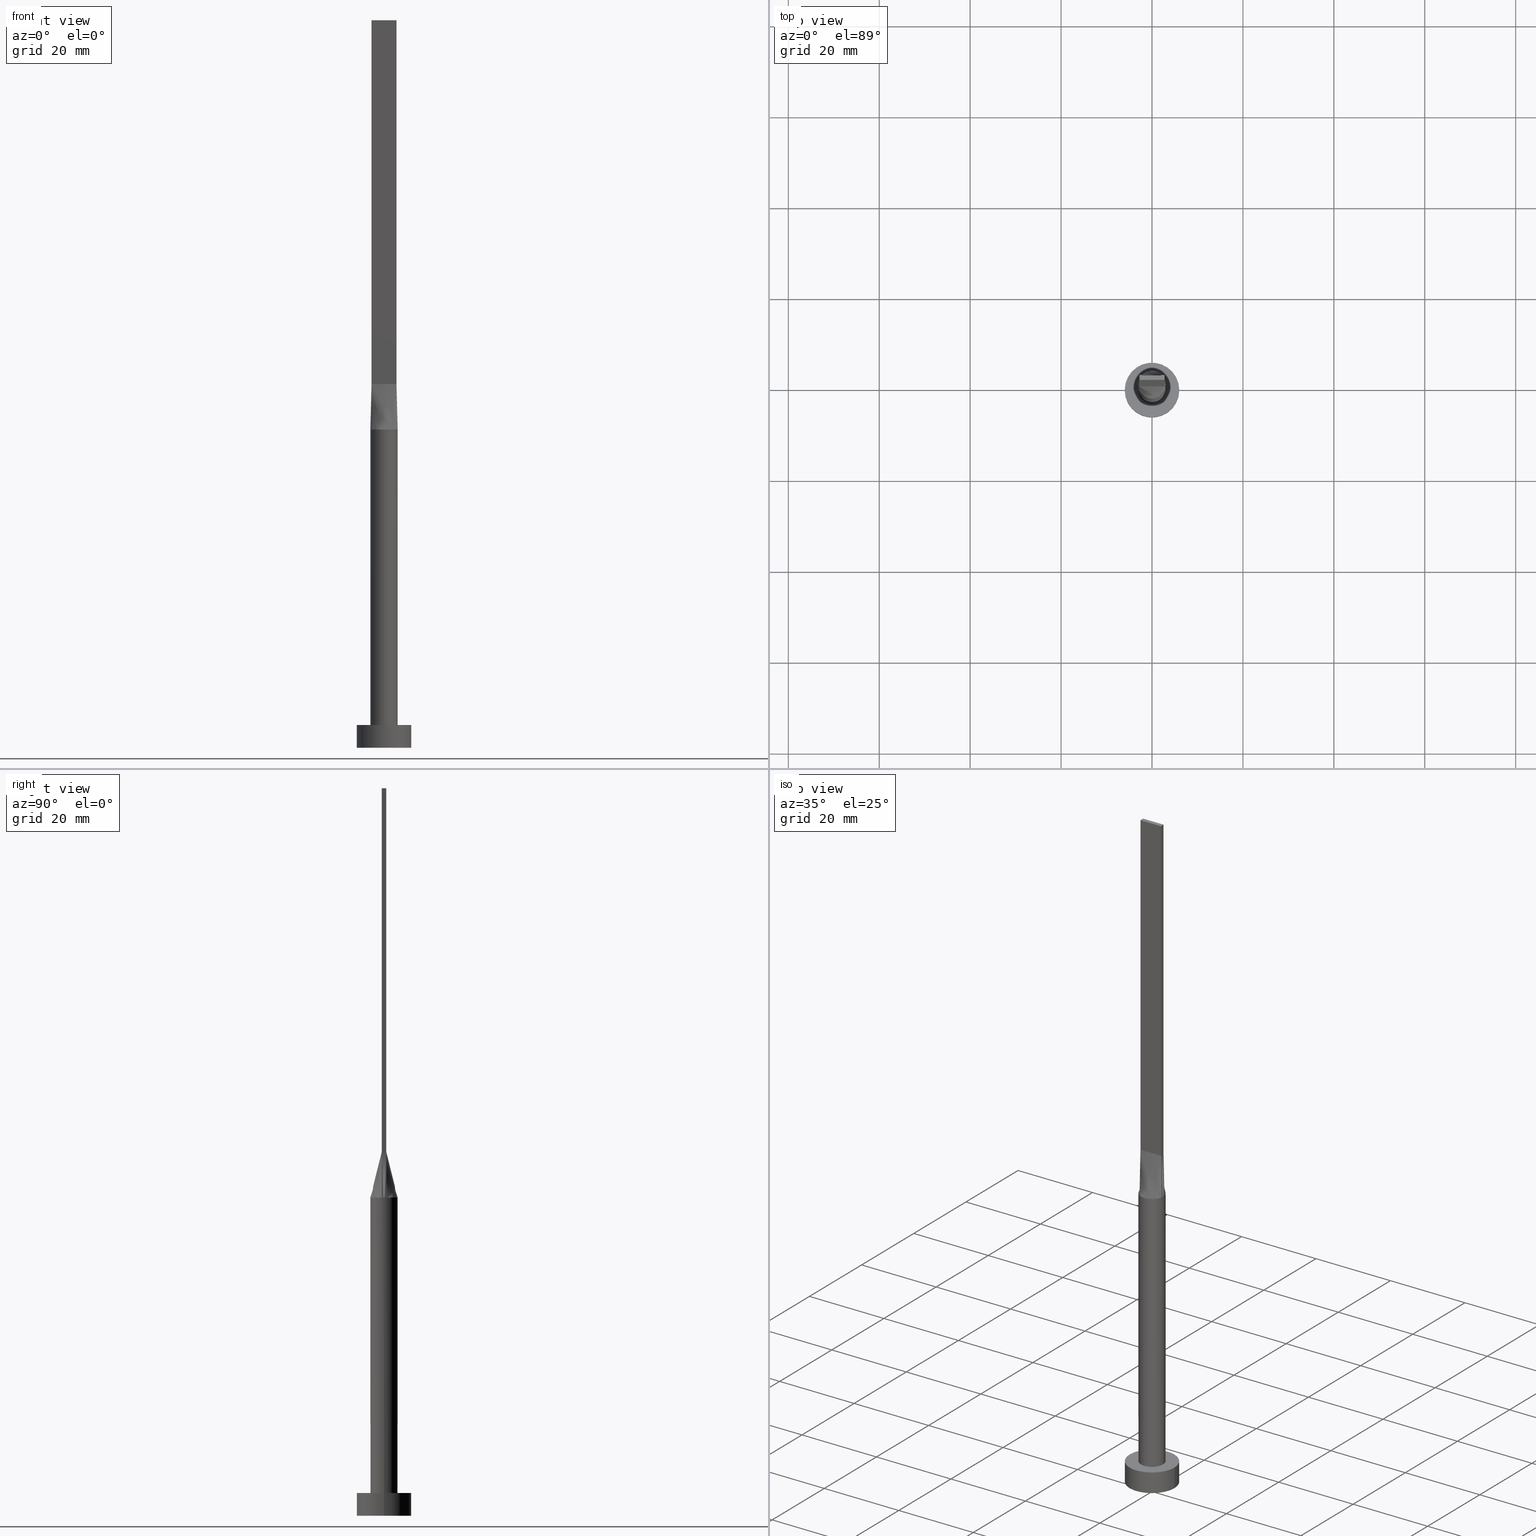
[diagram: canonical four-view strip — front | top / right | iso, engineering-drawing reading convention]
A machine part, canonical four-view strip (front | top / right | iso — engineering-drawing reading convention). The complete STEP part file that produces these views, byte-faithful:
ISO-10303-21;
HEADER;
FILE_DESCRIPTION (( 'STEP AP203' ),
    '1' );
FILE_NAME ('b44e.STEP',
    '2023-02-13T11:43:28',
    ( '' ),
    ( '' ),
    'SwSTEP 2.0',
    'SolidWorks 2019',
    '' );
FILE_SCHEMA (( 'CONFIG_CONTROL_DESIGN' ));
ENDSEC;

DATA;
#1 = DIRECTION ( 'NONE',  ( -1.000000000000000000, 5.913830031739115543E-17, 0.000000000000000000 ) ) ;
#2 = EDGE_CURVE ( 'NONE', #473, #465, #387, .T. ) ;
#3 = ORIENTED_EDGE ( 'NONE', *, *, #96, .T. ) ;
#4 = VERTEX_POINT ( 'NONE', #468 ) ;
#5 = AXIS2_PLACEMENT_3D ( 'NONE', #438, #88, #351 ) ;
#6 = CIRCLE ( 'NONE', #252, 3.000000000000000444 ) ;
#7 = CARTESIAN_POINT ( 'NONE',  ( 2.983609730299723317, 0.3606563145999492903, 70.00000000000000000 ) ) ;
#8 = ORIENTED_EDGE ( 'NONE', *, *, #384, .F. ) ;
#9 = ORIENTED_EDGE ( 'NONE', *, *, #550, .F. ) ;
#10 = FACE_OUTER_BOUND ( 'NONE', #406, .T. ) ;
#11 = DIRECTION ( 'NONE',  ( 1.000000000000000000, 0.000000000000000000, 0.000000000000000000 ) ) ;
#12 = MANIFOLD_SOLID_BREP ( 'P�idat vysunut�m5', #442 ) ;
#13 = CARTESIAN_POINT ( 'NONE',  ( -2.999609730299722887, -0.1803281572999742843, 70.00000000000000000 ) ) ;
#14 = VECTOR ( 'NONE', #429, 1000.000000000000000 ) ;
#15 = CC_DESIGN_APPROVAL ( #155, ( #521 ) ) ;
#16 = EDGE_LOOP ( 'NONE', ( #157, #390, #172, #3 ) ) ;
#17 = CARTESIAN_POINT ( 'NONE',  ( -0.8331239790496237640, 2.909606296598777231, 70.00000000000001421 ) ) ;
#18 = DIRECTION ( 'NONE',  ( 1.000000000000000000, -5.913830031739115543E-17, 0.000000000000000000 ) ) ;
#19 = VERTEX_POINT ( 'NONE', #124 ) ;
#20 = CARTESIAN_POINT ( 'NONE',  ( 0.000000000000000000, 0.000000000000000000, 70.00000000000000000 ) ) ;
#21 = ORIENTED_EDGE ( 'NONE', *, *, #405, .T. ) ;
#22 = EDGE_CURVE ( 'NONE', #32, #74, #401, .T. ) ;
#23 = CARTESIAN_POINT ( 'NONE',  ( 2.907609730299723250, -0.7786563145999499946, 70.00000000000001421 ) ) ;
#24 = VECTOR ( 'NONE', #223, 1000.000000000000000 ) ;
#25 = CARTESIAN_POINT ( 'NONE',  ( -6.000000000000000888, 0.000000000000000000, 5.000000000000000000 ) ) ;
#26 =( NAMED_UNIT ( * ) PLANE_ANGLE_UNIT ( ) SI_UNIT ( $, .RADIAN. ) );
#27 = CARTESIAN_POINT ( 'NONE',  ( 2.829409566978765778, 1.041313647073049298, 70.00000000000000000 ) ) ;
#28 = CARTESIAN_POINT ( 'NONE',  ( -6.000000000000000888, 0.000000000000000000, 5.000000000000000000 ) ) ;
#29 = DIRECTION ( 'NONE',  ( 1.000000000000000000, -5.913830031739115543E-17, 0.000000000000000000 ) ) ;
#30 = ADVANCED_FACE ( 'NONE', ( #563 ), #466, .T. ) ;
#31 = CARTESIAN_POINT ( 'NONE',  ( 0.000000000000000000, 0.000000000000000000, 0.000000000000000000 ) ) ;
#32 = VERTEX_POINT ( 'NONE', #484 ) ;
#33 = DIRECTION ( 'NONE',  ( 1.000000000000000000, 0.000000000000000000, 0.000000000000000000 ) ) ;
#34 = DIRECTION ( 'NONE',  ( -0.02015674154923151329, -0.003664862099860239936, -0.9997901152521495582 ) ) ;
#35 = CARTESIAN_POINT ( 'NONE',  ( -2.750000000000000000, 0.5000000000000002220, 80.00000000000000000 ) ) ;
#36 = APPROVAL_STATUS ( 'not_yet_approved' ) ;
#37 = EDGE_CURVE ( 'NONE', #473, #4, #319, .T. ) ;
#38 = PERSON_AND_ORGANIZATION_ROLE ( 'creator' ) ;
#39 = APPROVAL_STATUS ( 'not_yet_approved' ) ;
#40 = CARTESIAN_POINT ( 'NONE',  ( -2.951609730299722401, 0.5366563145999488915, 70.00000000000000000 ) ) ;
#41 = CARTESIAN_POINT ( 'NONE',  ( 2.850804865149861644, 0.5183281572999747233, 75.00000000000001421 ) ) ;
#42 = VECTOR ( 'NONE', #288, 1000.000000000000114 ) ;
#43 = DATE_AND_TIME ( #573, #60 ) ;
#44 = ORIENTED_EDGE ( 'NONE', *, *, #2, .T. ) ;
#45 = CARTESIAN_POINT ( 'NONE',  ( 2.951896064709005785, -0.5367080392066734262, 70.00000000000000000 ) ) ;
#46 = CARTESIAN_POINT ( 'NONE',  ( -1.604166666666666963, 0.5000000000000002220, 79.99999999999998579 ) ) ;
#47 = EDGE_CURVE ( 'NONE', #421, #225, #304, .T. ) ;
#48 = ORIENTED_EDGE ( 'NONE', *, *, #276, .T. ) ;
#49 = CARTESIAN_POINT ( 'NONE',  ( 2.750000000000000000, -0.4999999999999997780, 160.0000000000000000 ) ) ;
#50 = CARTESIAN_POINT ( 'NONE',  ( 0.000000000000000000, 0.000000000000000000, 5.000000000000000000 ) ) ;
#51 = VERTEX_POINT ( 'NONE', #28 ) ;
#52 = PLANE ( 'NONE',  #145 ) ;
#53 = AXIS2_PLACEMENT_3D ( 'NONE', #122, #540, #119 ) ;
#54 = EDGE_CURVE ( 'NONE', #456, #191, #199, .T. ) ;
#55 = DIRECTION ( 'NONE',  ( 1.000000000000000000, 0.000000000000000000, -0.000000000000000000 ) ) ;
#56 = CARTESIAN_POINT ( 'NONE',  ( -2.750000000000000000, 0.5000000000000002220, 160.0000000000000000 ) ) ;
#57 = UNCERTAINTY_MEASURE_WITH_UNIT (LENGTH_MEASURE( 1.000000000000000082E-05 ), #247, 'distance_accuracy_value', 'NONE');
#58 = VECTOR ( 'NONE', #498, 1000.000000000000000 ) ;
#59 = CARTESIAN_POINT ( 'NONE',  ( 2.750000000000000000, 0.5000000000000002220, 160.0000000000000000 ) ) ;
#60 = LOCAL_TIME ( 12, 43, 28.00000000000000000, #399 ) ;
#61 = VERTEX_POINT ( 'NONE', #312 ) ;
#62 = CARTESIAN_POINT ( 'NONE',  ( -1.145833333333333703, 0.5000000000000002220, 79.99999999999998579 ) ) ;
#63 = CC_DESIGN_DATE_AND_TIME_ASSIGNMENT ( #445, #308, ( #80 ) ) ;
#64 = EDGE_LOOP ( 'NONE', ( #181, #578, #9, #300, #441, #21 ) ) ;
#65 = CARTESIAN_POINT ( 'NONE',  ( 2.907609730299723250, 0.7786563145999496616, 70.00000000000001421 ) ) ;
#66 = CARTESIAN_POINT ( 'NONE',  ( 0.000000000000000000, 0.000000000000000000, 0.000000000000000000 ) ) ;
#67 = CARTESIAN_POINT ( 'NONE',  ( 2.291666666666666519, 0.5000000000000002220, 79.99999999999998579 ) ) ;
#68 = ORIENTED_EDGE ( 'NONE', *, *, #231, .F. ) ;
#69 = DIRECTION ( 'NONE',  ( -0.000000000000000000, -0.000000000000000000, -1.000000000000000000 ) ) ;
#70 = DIRECTION ( 'NONE',  ( 1.000000000000000000, 0.000000000000000000, 0.000000000000000000 ) ) ;
#71 = CARTESIAN_POINT ( 'NONE',  ( -0.4172881767044976375, 2.999999999999999556, 69.99999999999998579 ) ) ;
#72 = LINE ( 'NONE', #125, #371 ) ;
#73 = AXIS2_PLACEMENT_3D ( 'NONE', #198, #528, #159 ) ;
#74 = VERTEX_POINT ( 'NONE', #579 ) ;
#75 = DIRECTION ( 'NONE',  ( -1.000000000000000000, 0.000000000000000000, 0.000000000000000000 ) ) ;
#76 = PERSON ( 'NEUR�EN�', 'NEUR�EN�', 'NEUR�EN�', ('NEUR�EN�'), ('NEUR�EN�'), ('NEUR�EN�') ) ;
#77 = FACE_OUTER_BOUND ( 'NONE', #418, .T. ) ;
#78 = COORDINATED_UNIVERSAL_TIME_OFFSET ( 1, 0, .AHEAD. ) ;
#79 = VECTOR ( 'NONE', #432, 1000.000000000000000 ) ;
#80 = SECURITY_CLASSIFICATION ( '', '', #269 ) ;
#81 = LINE ( 'NONE', #524, #474 ) ;
#82 = CARTESIAN_POINT ( 'NONE',  ( 2.567367750129864401, -1.580669302822276023, 70.00000000000001421 ) ) ;
#83 = DATE_TIME_ROLE ( 'creation_date' ) ;
#84 = ORIENTED_EDGE ( 'NONE', *, *, #180, .F. ) ;
#85 = ADVANCED_FACE ( 'NONE', ( #506 ), #52, .F. ) ;
#86 = CARTESIAN_POINT ( 'NONE',  ( -0.4583333333333340365, -0.4999999999999995559, 79.99999999999998579 ) ) ;
#87 = PRODUCT_DEFINITION_SHAPE ( 'NONE', 'NONE',  #521 ) ;
#88 = DIRECTION ( 'NONE',  ( 0.000000000000000000, 0.000000000000000000, 1.000000000000000000 ) ) ;
#89 = CARTESIAN_POINT ( 'NONE',  ( 0.2291666666666659635, -0.4999999999999995559, 79.99999999999998579 ) ) ;
#90 = CARTESIAN_POINT ( 'NONE',  ( 0.4583333333333325932, -0.4999999999999995559, 79.99999999999998579 ) ) ;
#91 = CALENDAR_DATE ( 2023, 13, 2 ) ;
#92 = ORIENTED_EDGE ( 'NONE', *, *, #111, .T. ) ;
#93 = CARTESIAN_POINT ( 'NONE',  ( -2.750000000000000000, -0.4999999999999994449, 160.0000000000000000 ) ) ;
#94 = DIRECTION ( 'NONE',  ( 0.000000000000000000, 0.000000000000000000, 1.000000000000000000 ) ) ;
#95 = ORIENTED_EDGE ( 'NONE', *, *, #131, .T. ) ;
#96 = EDGE_CURVE ( 'NONE', #74, #32, #551, .T. ) ;
#97 = AXIS2_PLACEMENT_3D ( 'NONE', #213, #455, #450 ) ;
#98 = ORIENTED_EDGE ( 'NONE', *, *, #169, .T. ) ;
#99 = FACE_OUTER_BOUND ( 'NONE', #16, .T. ) ;
#100 = PERSON_AND_ORGANIZATION_ROLE ( 'design_supplier' ) ;
#101 = CARTESIAN_POINT ( 'NONE',  ( -1.833333333333333481, 0.5000000000000002220, 79.99999999999998579 ) ) ;
#102 = EDGE_LOOP ( 'NONE', ( #451, #98, #48, #408, #410, #415 ) ) ;
#103 = DIRECTION ( 'NONE',  ( 1.000000000000000000, 0.000000000000000000, -0.000000000000000000 ) ) ;
#104 = CARTESIAN_POINT ( 'NONE',  ( 2.750000000000000000, -0.4999999999999997780, 160.0000000000000000 ) ) ;
#105 = EDGE_CURVE ( 'NONE', #61, #456, #271, .T. ) ;
#106 = CARTESIAN_POINT ( 'NONE',  ( 2.951609730299722401, -0.5366563145999498907, 70.00000000000000000 ) ) ;
#107 = AXIS2_PLACEMENT_3D ( 'NONE', #244, #69, #75 ) ;
#108 = APPROVAL_PERSON_ORGANIZATION ( #398, #435, #572 ) ;
#109 = CARTESIAN_POINT ( 'NONE',  ( -2.983609730299722429, 0.3606563145999497344, 70.00000000000000000 ) ) ;
#110 = FACE_OUTER_BOUND ( 'NONE', #321, .T. ) ;
#111 = EDGE_CURVE ( 'NONE', #51, #142, #188, .T. ) ;
#112 = VECTOR ( 'NONE', #34, 1000.000000000000114 ) ;
#113 = CARTESIAN_POINT ( 'NONE',  ( 0.4172881767044975820, 3.000000000000000000, 70.00000000000000000 ) ) ;
#114 = ORIENTED_EDGE ( 'NONE', *, *, #189, .F. ) ;
#115 = CARTESIAN_POINT ( 'NONE',  ( 2.907609730299723250, 0.7786563145999496616, 70.00000000000001421 ) ) ;
#116 = CARTESIAN_POINT ( 'NONE',  ( -2.567367750129864401, 1.580669302822275357, 70.00000000000001421 ) ) ;
#117 = CARTESIAN_POINT ( 'NONE',  ( 2.850804865149861200, -0.5183281572999745013, 75.00000000000001421 ) ) ;
#118 = CARTESIAN_POINT ( 'NONE',  ( 0.2291666666666662966, 0.5000000000000002220, 80.00000000000000000 ) ) ;
#119 = DIRECTION ( 'NONE',  ( 1.000000000000000000, 0.000000000000000000, 0.000000000000000000 ) ) ;
#120 = EDGE_CURVE ( 'NONE', #421, #574, #508, .T. ) ;
#121 = CARTESIAN_POINT ( 'NONE',  ( -2.520833333333333037, -0.4999999999999994449, 79.99999999999998579 ) ) ;
#122 = CARTESIAN_POINT ( 'NONE',  ( 0.000000000000000000, 0.000000000000000000, 70.00000000000000000 ) ) ;
#123 = ORIENTED_EDGE ( 'NONE', *, *, #96, .F. ) ;
#124 = CARTESIAN_POINT ( 'NONE',  ( -3.000000000000000444, 0.000000000000000000, 5.000000000000000000 ) ) ;
#125 = CARTESIAN_POINT ( 'NONE',  ( 2.750000000000000000, 0.5000000000000002220, 160.0000000000000000 ) ) ;
#126 = ORIENTED_EDGE ( 'NONE', *, *, #256, .T. ) ;
#127 = CARTESIAN_POINT ( 'NONE',  ( -2.567367750129864845, -1.580669302822274691, 70.00000000000000000 ) ) ;
#128 = EDGE_CURVE ( 'NONE', #174, #555, #316, .T. ) ;
#129 = CARTESIAN_POINT ( 'NONE',  ( -1.566158656300002727, -2.589797565249318811, 70.00000000000000000 ) ) ;
#130 = CIRCLE ( 'NONE', #243, 3.000000000000000444 ) ;
#131 = EDGE_CURVE ( 'NONE', #555, #225, #396, .T. ) ;
#132 = EDGE_LOOP ( 'NONE', ( #496, #44, #499, #514 ) ) ;
#133 = LINE ( 'NONE', #211, #112 ) ;
#134 = AXIS2_PLACEMENT_3D ( 'NONE', #170, #353, #1 ) ;
#135 = APPROVAL_PERSON_ORGANIZATION ( #201, #155, #542 ) ;
#136 = ORIENTED_EDGE ( 'NONE', *, *, #54, .F. ) ;
#137 = CARTESIAN_POINT ( 'NONE',  ( -2.750000000000000000, -0.1666666666666678787, 79.99999999999998579 ) ) ;
#138 = DIRECTION ( 'NONE',  ( -0.000000000000000000, -0.000000000000000000, -1.000000000000000000 ) ) ;
#139 = FACE_OUTER_BOUND ( 'NONE', #513, .T. ) ;
#140 = CALENDAR_DATE ( 2023, 13, 2 ) ;
#141 = DIRECTION ( 'NONE',  ( 0.000000000000000000, 0.000000000000000000, 1.000000000000000000 ) ) ;
#142 = VERTEX_POINT ( 'NONE', #539 ) ;
#143 = CYLINDRICAL_SURFACE ( 'NONE', #426, 3.000000000000000444 ) ;
#144 = CARTESIAN_POINT ( 'NONE',  ( -1.566158656300002061, 2.589797565249319700, 69.99999999999998579 ) ) ;
#145 = AXIS2_PLACEMENT_3D ( 'NONE', #501, #224, #403 ) ;
#146 = CARTESIAN_POINT ( 'NONE',  ( 2.750000000000000000, 0.3333333333333342585, 79.99999999999998579 ) ) ;
#147 = CARTESIAN_POINT ( 'NONE',  ( 0.9166666666666664076, 0.5000000000000002220, 79.99999999999998579 ) ) ;
#148 = PLANE ( 'NONE',  #331 ) ;
#149 = CARTESIAN_POINT ( 'NONE',  ( 0.4583333333333330373, 0.5000000000000002220, 79.99999999999998579 ) ) ;
#150 = CARTESIAN_POINT ( 'NONE',  ( 1.566158656300002061, 2.589797565249318811, 70.00000000000000000 ) ) ;
#151 = MECHANICAL_CONTEXT ( 'NONE', #364, 'mechanical' ) ;
#152 = VECTOR ( 'NONE', #544, 1000.000000000000000 ) ;
#153 = CARTESIAN_POINT ( 'NONE',  ( 2.951871110830718514, 0.5367036202482695639, 70.00000000000000000 ) ) ;
#154 = CARTESIAN_POINT ( 'NONE',  ( 1.833333333333333037, 0.5000000000000002220, 79.99999999999998579 ) ) ;
#155 = APPROVAL ( #36, 'NEUR�EN�' ) ;
#156 = APPLICATION_PROTOCOL_DEFINITION ( 'international standard', 'config_control_design', 1994, #274 ) ;
#157 = ORIENTED_EDGE ( 'NONE', *, *, #328, .F. ) ;
#158 = CARTESIAN_POINT ( 'NONE',  ( -2.750000000000000000, -0.4999999999999994449, 80.00000000000000000 ) ) ;
#159 = DIRECTION ( 'NONE',  ( 0.000000000000000000, 0.000000000000000000, 1.000000000000000000 ) ) ;
#160 = ORIENTED_EDGE ( 'NONE', *, *, #163, .F. ) ;
#161 = CARTESIAN_POINT ( 'NONE',  ( -2.951609730299722845, -0.5366563145999487805, 70.00000000000000000 ) ) ;
#162 = VECTOR ( 'NONE', #18, 1000.000000000000000 ) ;
#163 = EDGE_CURVE ( 'NONE', #191, #239, #133, .T. ) ;
#164 = CARTESIAN_POINT ( 'NONE',  ( -2.951885853416577277, -0.5367063210726346068, 70.00000000000000000 ) ) ;
#165 = ORIENTED_EDGE ( 'NONE', *, *, #22, .T. ) ;
#166 = CARTESIAN_POINT ( 'NONE',  ( -1.882426928433514224, -2.362790634184934291, 69.99999999999998579 ) ) ;
#167 = CYLINDRICAL_SURFACE ( 'NONE', #463, 6.000000000000000888 ) ;
#168 = LOCAL_TIME ( 12, 43, 28.00000000000000000, #176 ) ;
#169 = EDGE_CURVE ( 'NONE', #4, #536, #494, .T. ) ;
#170 = CARTESIAN_POINT ( 'NONE',  ( -2.750000000000000000, -0.4999999999999994449, 160.0000000000000000 ) ) ;
#171 = CARTESIAN_POINT ( 'NONE',  ( 1.566158656300001395, -2.589797565249319256, 69.99999999999998579 ) ) ;
#172 = ORIENTED_EDGE ( 'NONE', *, *, #241, .T. ) ;
#173 = CARTESIAN_POINT ( 'NONE',  ( -2.983609730299723317, -0.3606563145999489572, 70.00000000000000000 ) ) ;
#174 = VERTEX_POINT ( 'NONE', #446 ) ;
#175 = CARTESIAN_POINT ( 'NONE',  ( 2.750000000000000000, 0.5000000000000002220, 160.0000000000000000 ) ) ;
#176 = COORDINATED_UNIVERSAL_TIME_OFFSET ( 1, 0, .AHEAD. ) ;
#177 = VECTOR ( 'NONE', #480, 1000.000000000000000 ) ;
#178 = ORIENTED_EDGE ( 'NONE', *, *, #365, .T. ) ;
#179 = CARTESIAN_POINT ( 'NONE',  ( -2.750000000000000000, 0.1666666666666652696, 79.99999999999998579 ) ) ;
#180 = EDGE_CURVE ( 'NONE', #465, #555, #81, .T. ) ;
#181 = ORIENTED_EDGE ( 'NONE', *, *, #169, .F. ) ;
#182 = DIRECTION ( 'NONE',  ( -1.000000000000000000, 0.000000000000000000, 0.000000000000000000 ) ) ;
#183 = DIRECTION ( 'NONE',  ( 1.000000000000000000, 0.000000000000000000, 0.000000000000000000 ) ) ;
#184 = CARTESIAN_POINT ( 'NONE',  ( 2.750000000000000000, -0.3333333333333324267, 79.99999999999998579 ) ) ;
#185 = CARTESIAN_POINT ( 'NONE',  ( -0.4583333333333337034, 0.5000000000000002220, 79.99999999999998579 ) ) ;
#186 = CARTESIAN_POINT ( 'NONE',  ( -2.951881273711813858, 0.5367053345652121887, 70.00000000000000000 ) ) ;
#187 = CARTESIAN_POINT ( 'NONE',  ( 1.882426928433512892, 2.362790634184934291, 69.99999999999998579 ) ) ;
#188 = CIRCLE ( 'NONE', #229, 6.000000000000000888 ) ;
#189 = EDGE_CURVE ( 'NONE', #412, #555, #72, .T. ) ;
#190 = CARTESIAN_POINT ( 'NONE',  ( -2.750000000000000000, -0.3333333333333339255, 79.99999999999998579 ) ) ;
#191 = VERTEX_POINT ( 'NONE', #349 ) ;
#192 = CARTESIAN_POINT ( 'NONE',  ( 6.000000000000000888, 7.347880794884120722E-16, 5.000000000000000000 ) ) ;
#193 =( NAMED_UNIT ( * ) SI_UNIT ( $, .STERADIAN. ) SOLID_ANGLE_UNIT ( ) );
#194 = VERTEX_POINT ( 'NONE', #200 ) ;
#195 = ORIENTED_EDGE ( 'NONE', *, *, #266, .T. ) ;
#196 = LOCAL_TIME ( 12, 43, 28.00000000000000000, #78 ) ;
#197 = CARTESIAN_POINT ( 'NONE',  ( -0.8331239790496237640, 2.909606296598777231, 70.00000000000001421 ) ) ;
#198 = CARTESIAN_POINT ( 'NONE',  ( 2.750000000000000000, -0.4999999999999997780, 160.0000000000000000 ) ) ;
#199 = LINE ( 'NONE', #354, #329 ) ;
#200 = CARTESIAN_POINT ( 'NONE',  ( 2.750000000000000000, -0.4999999999999997780, 160.0000000000000000 ) ) ;
#201 = PERSON_AND_ORGANIZATION ( #76, #391 ) ;
#202 = ORIENTED_EDGE ( 'NONE', *, *, #2, .F. ) ;
#203 = EDGE_CURVE ( 'NONE', #412, #61, #433, .T. ) ;
#204 = AXIS2_PLACEMENT_3D ( 'NONE', #307, #94, #363 ) ;
#205 = CC_DESIGN_SECURITY_CLASSIFICATION ( #80, ( #310 ) ) ;
#206 = CARTESIAN_POINT ( 'NONE',  ( 3.000000000000000444, 3.673940397442060361E-16, 70.00000000000000000 ) ) ;
#207 = FACE_OUTER_BOUND ( 'NONE', #264, .T. ) ;
#208 = CARTESIAN_POINT ( 'NONE',  ( -1.145833333333333703, -0.4999999999999995559, 79.99999999999998579 ) ) ;
#209 = PERSON_AND_ORGANIZATION ( #76, #391 ) ;
#210 = PRODUCT_RELATED_PRODUCT_CATEGORY ( 'detail', '', ( #254 ) ) ;
#211 = CARTESIAN_POINT ( 'NONE',  ( -2.850804865149861644, -0.5183281572999741682, 75.00000000000001421 ) ) ;
#212 = DATE_AND_TIME ( #530, #500 ) ;
#213 = CARTESIAN_POINT ( 'NONE',  ( 0.000000000000000000, 0.000000000000000000, 5.000000000000000000 ) ) ;
#214 = ORIENTED_EDGE ( 'NONE', *, *, #339, .T. ) ;
#215 = B_SPLINE_CURVE_WITH_KNOTS ( 'NONE', 3,
 ( #153, #65, #27, #374, #376, #557, #150, #327, #113, #286, #197, #467, #332, #383, #116, #290, #337, #535 ),
 .UNSPECIFIED., .F., .F.,
 ( 4, 2, 2, 2, 2, 2, 2, 2, 4 ),
 ( 0.000000000000000000, 0.1250000000000000000, 0.2500000000000000000, 0.3750000000000000000, 0.5000000000000000000, 0.6250000000000000000, 0.7500000000000000000, 0.8750000000000000000, 1.000000000000000000 ),
 .UNSPECIFIED. ) ;
#216 = DIRECTION ( 'NONE',  ( -0.000000000000000000, -0.000000000000000000, -1.000000000000000000 ) ) ;
#217 = AXIS2_PLACEMENT_3D ( 'NONE', #272, #141, #358 ) ;
#218 = APPROVAL_DATE_TIME ( #43, #420 ) ;
#219 = EDGE_LOOP ( 'NONE', ( #214, #461, #360, #543 ) ) ;
#220 = ORIENTED_EDGE ( 'NONE', *, *, #227, .T. ) ;
#221 = DIRECTION ( 'NONE',  ( -1.000000000000000000, -0.000000000000000000, -0.000000000000000000 ) ) ;
#222 = EDGE_LOOP ( 'NONE', ( #68, #366, #165, #381 ) ) ;
#223 = DIRECTION ( 'NONE',  ( 0.000000000000000000, 1.000000000000000000, 0.000000000000000000 ) ) ;
#224 = DIRECTION ( 'NONE',  ( 1.000000000000000000, 0.000000000000000000, -0.000000000000000000 ) ) ;
#225 = VERTEX_POINT ( 'NONE', #291 ) ;
#226 = CARTESIAN_POINT ( 'NONE',  ( 0.000000000000000000, 0.000000000000000000, 70.00000000000000000 ) ) ;
#227 = EDGE_CURVE ( 'NONE', #225, #191, #246, .T. ) ;
#228 = CARTESIAN_POINT ( 'NONE',  ( 2.750000000000000000, -0.1666666666666653529, 79.99999999999998579 ) ) ;
#229 = AXIS2_PLACEMENT_3D ( 'NONE', #50, #443, #407 ) ;
#230 = LOCAL_TIME ( 12, 43, 28.00000000000000000, #359 ) ;
#231 = EDGE_CURVE ( 'NONE', #142, #51, #434, .T. ) ;
#232 = CARTESIAN_POINT ( 'NONE',  ( 2.382399439808187580, 1.857547746650221709, 70.00000000000000000 ) ) ;
#233 = AXIS2_PLACEMENT_3D ( 'NONE', #318, #559, #55 ) ;
#234 = CARTESIAN_POINT ( 'NONE',  ( 3.000000000000000444, 3.673940397442060361E-16, 5.000000000000000000 ) ) ;
#235 = CARTESIAN_POINT ( 'NONE',  ( -2.382399439808186692, 1.857547746650221265, 70.00000000000001421 ) ) ;
#236 = DIRECTION ( 'NONE',  ( 1.000000000000000000, 0.000000000000000000, 0.000000000000000000 ) ) ;
#237 = PLANE ( 'NONE',  #233 ) ;
#238 = ORIENTED_EDGE ( 'NONE', *, *, #309, .T. ) ;
#239 = VERTEX_POINT ( 'NONE', #164 ) ;
#240 = B_SPLINE_SURFACE_WITH_KNOTS ( 'NONE', 3, 1, ( 
 ( #106, #502 ),
 ( #277, #184 ),
 ( #368, #228 ),
 ( #313, #414 ),
 ( #7, #146 ),
 ( #322, #280 ) ),
 .UNSPECIFIED., .F., .F., .F.,
 ( 4, 2, 4 ),
 ( 2, 2 ),
 ( 0.000000000000000000, 0.5000000000000000000, 1.000000000000000000 ),
 ( 0.000000000000000000, 1.000000000000000000 ),
 .UNSPECIFIED. ) ;
#241 = EDGE_CURVE ( 'NONE', #51, #74, #388, .T. ) ;
#242 = CARTESIAN_POINT ( 'NONE',  ( 2.750000000000000000, 0.5000000000000002220, 80.00000000000000000 ) ) ;
#243 = AXIS2_PLACEMENT_3D ( 'NONE', #20, #556, #564 ) ;
#244 = CARTESIAN_POINT ( 'NONE',  ( 0.000000000000000000, 0.000000000000000000, 70.00000000000000000 ) ) ;
#245 = ADVANCED_FACE ( 'NONE', ( #77 ), #248, .F. ) ;
#246 = LINE ( 'NONE', #35, #79 ) ;
#247 =( LENGTH_UNIT ( ) NAMED_UNIT ( * ) SI_UNIT ( .MILLI., .METRE. ) );
#248 = PLANE ( 'NONE',  #73 ) ;
#249 = EDGE_LOOP ( 'NONE', ( #195, #483, #8, #447 ) ) ;
#250 = CARTESIAN_POINT ( 'NONE',  ( 0.000000000000000000, 0.000000000000000000, 5.000000000000000000 ) ) ;
#251 = CARTESIAN_POINT ( 'NONE',  ( -2.382399439808189356, -1.857547746650220599, 70.00000000000000000 ) ) ;
#252 = AXIS2_PLACEMENT_3D ( 'NONE', #416, #509, #11 ) ;
#253 = PERSON_AND_ORGANIZATION_ROLE ( 'creator' ) ;
#254 = PRODUCT ( 'b44e', 'b44e', '', ( #151 ) ) ;
#255 = CARTESIAN_POINT ( 'NONE',  ( -2.520833333333333037, 0.5000000000000002220, 79.99999999999998579 ) ) ;
#256 = EDGE_CURVE ( 'NONE', #4, #174, #292, .T. ) ;
#257 = CARTESIAN_POINT ( 'NONE',  ( -0.4172881767044983592, -2.999999999999999556, 70.00000000000000000 ) ) ;
#258 = PERSON_AND_ORGANIZATION ( #76, #391 ) ;
#259 = PLANE ( 'NONE',  #97 ) ;
#260 = DIRECTION ( 'NONE',  ( 0.02015674154923147166, -0.003664862099860175318, 0.9997901152521495582 ) ) ;
#261 = CARTESIAN_POINT ( 'NONE',  ( 0.8331239790496235420, -2.909606296598777231, 70.00000000000001421 ) ) ;
#262 = CARTESIAN_POINT ( 'NONE',  ( -2.750000000000000000, 0.5000000000000002220, 160.0000000000000000 ) ) ;
#263 = DIRECTION ( 'NONE',  ( -0.000000000000000000, -0.000000000000000000, -1.000000000000000000 ) ) ;
#264 = EDGE_LOOP ( 'NONE', ( #92, #423 ) ) ;
#265 = ORIENTED_EDGE ( 'NONE', *, *, #479, .T. ) ;
#266 = EDGE_CURVE ( 'NONE', #191, #465, #427, .T. ) ;
#267 = EDGE_LOOP ( 'NONE', ( #123, #338 ) ) ;
#268 = CARTESIAN_POINT ( 'NONE',  ( -2.750000000000000000, -0.4999999999999993339, 80.00000000000000000 ) ) ;
#269 = SECURITY_CLASSIFICATION_LEVEL ( 'unclassified' ) ;
#270 = CARTESIAN_POINT ( 'NONE',  ( 0.000000000000000000, 0.000000000000000000, 70.00000000000000000 ) ) ;
#271 = LINE ( 'NONE', #262, #58 ) ;
#272 = CARTESIAN_POINT ( 'NONE',  ( 0.000000000000000000, 0.000000000000000000, 5.000000000000000000 ) ) ;
#273 = VECTOR ( 'NONE', #477, 1000.000000000000000 ) ;
#274 = APPLICATION_CONTEXT ( 'configuration controlled 3d designs of mechanical parts and assemblies' ) ;
#275 = ORIENTED_EDGE ( 'NONE', *, *, #276, .F. ) ;
#276 = EDGE_CURVE ( 'NONE', #536, #19, #341, .T. ) ;
#277 = CARTESIAN_POINT ( 'NONE',  ( 2.983609730299722429, -0.3606563145999500120, 70.00000000000000000 ) ) ;
#278 = DIRECTION ( 'NONE',  ( 0.000000000000000000, 0.000000000000000000, 1.000000000000000000 ) ) ;
#279 = CARTESIAN_POINT ( 'NONE',  ( -2.750000000000000000, 0.3333333333333324822, 79.99999999999998579 ) ) ;
#280 = CARTESIAN_POINT ( 'NONE',  ( 2.750000000000000000, 0.5000000000000002220, 80.00000000000000000 ) ) ;
#281 = CARTESIAN_POINT ( 'NONE',  ( 1.604166666666666519, 0.5000000000000002220, 79.99999999999998579 ) ) ;
#282 = CARTESIAN_POINT ( 'NONE',  ( 0.000000000000000000, 0.000000000000000000, 0.000000000000000000 ) ) ;
#283 = CARTESIAN_POINT ( 'NONE',  ( -0.2291666666666670460, 0.5000000000000002220, 79.99999999999998579 ) ) ;
#284 = AXIS2_PLACEMENT_3D ( 'NONE', #175, #507, #545 ) ;
#285 = CYLINDRICAL_SURFACE ( 'NONE', #107, 3.000000000000000444 ) ;
#286 = CARTESIAN_POINT ( 'NONE',  ( -0.4172881767044976375, 2.999999999999999556, 69.99999999999998579 ) ) ;
#287 = CARTESIAN_POINT ( 'NONE',  ( 2.829409566978765334, -1.041313647073049742, 70.00000000000001421 ) ) ;
#288 = DIRECTION ( 'NONE',  ( -0.02015674154923147166, 0.003664862099860250778, 0.9997901152521495582 ) ) ;
#289 = ADVANCED_FACE ( 'NONE', ( #10 ), #317, .F. ) ;
#290 = CARTESIAN_POINT ( 'NONE',  ( -2.829409566978765334, 1.041313647073049298, 70.00000000000001421 ) ) ;
#291 = CARTESIAN_POINT ( 'NONE',  ( -2.750000000000000000, 0.5000000000000002220, 80.00000000000000000 ) ) ;
#292 = CIRCLE ( 'NONE', #53, 3.000000000000000444 ) ;
#293 = ORIENTED_EDGE ( 'NONE', *, *, #405, .F. ) ;
#294 = CC_DESIGN_APPROVAL ( #420, ( #310 ) ) ;
#295 = ADVANCED_FACE ( 'NONE', ( #139 ), #240, .T. ) ;
#296 = CARTESIAN_POINT ( 'NONE',  ( 2.750000000000000000, 0.5000000000000002220, 160.0000000000000000 ) ) ;
#297 = DIRECTION ( 'NONE',  ( 0.000000000000000000, 0.000000000000000000, 1.000000000000000000 ) ) ;
#298 = APPROVAL_ROLE ( '' ) ;
#299 = B_SPLINE_SURFACE_WITH_KNOTS ( 'NONE', 3, 1, ( 
 ( #505, #311 ),
 ( #109, #279 ),
 ( #417, #179 ),
 ( #13, #137 ),
 ( #173, #190 ),
 ( #372, #268 ) ),
 .UNSPECIFIED., .F., .F., .F.,
 ( 4, 2, 4 ),
 ( 2, 2 ),
 ( 0.000000000000000000, 0.5000000000000000000, 1.000000000000000000 ),
 ( 0.000000000000000000, 1.000000000000000000 ),
 .UNSPECIFIED. ) ;
#300 = ORIENTED_EDGE ( 'NONE', *, *, #365, .F. ) ;
#301 = VECTOR ( 'NONE', #260, 1000.000000000000114 ) ;
#302 = APPROVAL_STATUS ( 'not_yet_approved' ) ;
#303 = CARTESIAN_POINT ( 'NONE',  ( -2.907609730299723250, 0.7786563145999495505, 70.00000000000001421 ) ) ;
#304 = LINE ( 'NONE', #488, #301 ) ;
#305 = ORIENTED_EDGE ( 'NONE', *, *, #37, .T. ) ;
#306 = LINE ( 'NONE', #104, #413 ) ;
#307 = CARTESIAN_POINT ( 'NONE',  ( 0.000000000000000000, 0.000000000000000000, 0.000000000000000000 ) ) ;
#308 = DATE_TIME_ROLE ( 'classification_date' ) ;
#309 = EDGE_CURVE ( 'NONE', #61, #225, #458, .T. ) ;
#310 = PRODUCT_DEFINITION_FORMATION_WITH_SPECIFIED_SOURCE ( 'LIBOVOLN�', '', #254, .NOT_KNOWN. ) ;
#311 = CARTESIAN_POINT ( 'NONE',  ( -2.750000000000000000, 0.5000000000000002220, 80.00000000000000000 ) ) ;
#312 = CARTESIAN_POINT ( 'NONE',  ( -2.750000000000000000, 0.5000000000000002220, 160.0000000000000000 ) ) ;
#313 = CARTESIAN_POINT ( 'NONE',  ( 2.999609730299722887, 0.1803281572999744509, 70.00000000000000000 ) ) ;
#314 = ORIENTED_EDGE ( 'NONE', *, *, #189, .T. ) ;
#315 = CC_DESIGN_PERSON_AND_ORGANIZATION_ASSIGNMENT ( #404, #577, ( #80 ) ) ;
#316 = LINE ( 'NONE', #41, #497 ) ;
#317 = PLANE ( 'NONE',  #284 ) ;
#318 = CARTESIAN_POINT ( 'NONE',  ( 0.000000000000000000, 0.000000000000000000, 160.0000000000000000 ) ) ;
#319 = CIRCLE ( 'NONE', #5, 3.000000000000000444 ) ;
#320 = CC_DESIGN_APPROVAL ( #435, ( #80 ) ) ;
#321 = EDGE_LOOP ( 'NONE', ( #326, #531, #487, #265 ) ) ;
#322 = CARTESIAN_POINT ( 'NONE',  ( 2.951609730299722845, 0.5366563145999491136, 70.00000000000000000 ) ) ;
#323 = DIRECTION ( 'NONE',  ( -0.000000000000000000, -0.000000000000000000, -1.000000000000000000 ) ) ;
#324 = FACE_OUTER_BOUND ( 'NONE', #517, .T. ) ;
#325 = FACE_OUTER_BOUND ( 'NONE', #102, .T. ) ;
#326 = ORIENTED_EDGE ( 'NONE', *, *, #203, .T. ) ;
#327 = CARTESIAN_POINT ( 'NONE',  ( 0.8331239790496237640, 2.909606296598776787, 69.99999999999998579 ) ) ;
#328 = EDGE_CURVE ( 'NONE', #142, #32, #386, .T. ) ;
#329 = VECTOR ( 'NONE', #138, 1000.000000000000000 ) ;
#330 = ORIENTED_EDGE ( 'NONE', *, *, #357, .T. ) ;
#331 = AXIS2_PLACEMENT_3D ( 'NONE', #282, #462, #103 ) ;
#332 = CARTESIAN_POINT ( 'NONE',  ( -1.882426928433513336, 2.362790634184935623, 70.00000000000001421 ) ) ;
#333 = CARTESIAN_POINT ( 'NONE',  ( 2.291666666666666075, -0.4999999999999997780, 79.99999999999998579 ) ) ;
#334 = ORIENTED_EDGE ( 'NONE', *, *, #47, .F. ) ;
#335 = CARTESIAN_POINT ( 'NONE',  ( 1.145833333333333037, 0.5000000000000002220, 79.99999999999998579 ) ) ;
#336 = CARTESIAN_POINT ( 'NONE',  ( -2.999804865149861666, -2.046477192139111704E-15, 70.00000000000000000 ) ) ;
#337 = CARTESIAN_POINT ( 'NONE',  ( -2.907609730299723250, 0.7786563145999495505, 70.00000000000001421 ) ) ;
#338 = ORIENTED_EDGE ( 'NONE', *, *, #22, .F. ) ;
#339 = EDGE_CURVE ( 'NONE', #174, #421, #215, .T. ) ;
#340 = CARTESIAN_POINT ( 'NONE',  ( -2.907609730299723250, -0.7786563145999485513, 70.00000000000001421 ) ) ;
#341 = CIRCLE ( 'NONE', #217, 3.000000000000000444 ) ;
#342 = CARTESIAN_POINT ( 'NONE',  ( 0.9166666666666658525, -0.4999999999999995559, 79.99999999999998579 ) ) ;
#343 = COORDINATED_UNIVERSAL_TIME_OFFSET ( 1, 0, .AHEAD. ) ;
#344 = CARTESIAN_POINT ( 'NONE',  ( -1.833333333333333481, -0.4999999999999995559, 79.99999999999998579 ) ) ;
#345 = DIRECTION ( 'NONE',  ( -1.000000000000000000, 0.000000000000000000, 0.000000000000000000 ) ) ;
#346 = B_SPLINE_SURFACE_WITH_KNOTS ( 'NONE', 3, 1, ( 
 ( #424, #242 ),
 ( #115, #472 ),
 ( #469, #67 ),
 ( #379, #154 ),
 ( #232, #281 ),
 ( #187, #335 ),
 ( #519, #147 ),
 ( #459, #149 ),
 ( #512, #118 ),
 ( #71, #283 ),
 ( #17, #185 ),
 ( #144, #510 ),
 ( #457, #62 ),
 ( #235, #46 ),
 ( #581, #101 ),
 ( #503, #491 ),
 ( #303, #255 ),
 ( #40, #437 ) ),
 .UNSPECIFIED., .F., .F., .F.,
 ( 4, 2, 2, 2, 2, 2, 2, 2, 4 ),
 ( 2, 2 ),
 ( 0.000000000000000000, 0.1250000000000000000, 0.2500000000000000000, 0.3750000000000000000, 0.5000000000000000000, 0.6250000000000000000, 0.7500000000000000000, 0.8750000000000000000, 1.000000000000000000 ),
 ( 0.000000000000000000, 1.000000000000000000 ),
 .UNSPECIFIED. ) ;
#347 = ADVANCED_FACE ( 'NONE', ( #478, #207 ), #259, .T. ) ;
#348 = FACE_OUTER_BOUND ( 'NONE', #219, .T. ) ;
#349 = CARTESIAN_POINT ( 'NONE',  ( -2.750000000000000000, -0.4999999999999994449, 80.00000000000000000 ) ) ;
#350 = ADVANCED_BREP_SHAPE_REPRESENTATION ( 'b44e', ( #12, #444 ), #523 ) ;
#351 = DIRECTION ( 'NONE',  ( 1.000000000000000000, 1.776356839400250465E-15, 0.000000000000000000 ) ) ;
#352 = CARTESIAN_POINT ( 'NONE',  ( 0.4172881767044969714, -3.000000000000000444, 69.99999999999998579 ) ) ;
#353 = DIRECTION ( 'NONE',  ( 5.913830031739115543E-17, 1.000000000000000000, -0.000000000000000000 ) ) ;
#354 = CARTESIAN_POINT ( 'NONE',  ( -2.750000000000000000, -0.4999999999999994449, 160.0000000000000000 ) ) ;
#355 = CARTESIAN_POINT ( 'NONE',  ( -2.750000000000000000, 0.5000000000000002220, 80.00000000000000000 ) ) ;
#356 = ORIENTED_EDGE ( 'NONE', *, *, #105, .F. ) ;
#357 = EDGE_CURVE ( 'NONE', #194, #465, #306, .T. ) ;
#358 = DIRECTION ( 'NONE',  ( 1.000000000000000000, 0.000000000000000000, 0.000000000000000000 ) ) ;
#359 = COORDINATED_UNIVERSAL_TIME_OFFSET ( 1, 0, .AHEAD. ) ;
#360 = ORIENTED_EDGE ( 'NONE', *, *, #131, .F. ) ;
#361 = LINE ( 'NONE', #362, #152 ) ;
#362 = CARTESIAN_POINT ( 'NONE',  ( -3.000000000000000444, 0.000000000000000000, 70.00000000000000000 ) ) ;
#363 = DIRECTION ( 'NONE',  ( 1.000000000000000000, 0.000000000000000000, 0.000000000000000000 ) ) ;
#364 = APPLICATION_CONTEXT ( 'configuration controlled 3d designs of mechanical parts and assemblies' ) ;
#365 = EDGE_CURVE ( 'NONE', #574, #239, #419, .T. ) ;
#366 = ORIENTED_EDGE ( 'NONE', *, *, #328, .T. ) ;
#367 = DIRECTION ( 'NONE',  ( -0.000000000000000000, -0.000000000000000000, -1.000000000000000000 ) ) ;
#368 = CARTESIAN_POINT ( 'NONE',  ( 2.999609730299722887, -0.1803281572999752003, 70.00000000000000000 ) ) ;
#369 = CYLINDRICAL_SURFACE ( 'NONE', #567, 6.000000000000000888 ) ;
#370 = DESIGN_CONTEXT ( 'detailed design', #274, 'design' ) ;
#371 = VECTOR ( 'NONE', #570, 1000.000000000000000 ) ;
#372 = CARTESIAN_POINT ( 'NONE',  ( -2.951609730299722845, -0.5366563145999487805, 70.00000000000000000 ) ) ;
#373 = ORIENTED_EDGE ( 'NONE', *, *, #203, .F. ) ;
#374 = CARTESIAN_POINT ( 'NONE',  ( 2.567367750129863957, 1.580669302822274913, 70.00000000000000000 ) ) ;
#375 = CC_DESIGN_PERSON_AND_ORGANIZATION_ASSIGNMENT ( #580, #38, ( #310 ) ) ;
#376 = CARTESIAN_POINT ( 'NONE',  ( 2.382399439808187580, 1.857547746650221709, 70.00000000000000000 ) ) ;
#377 = FACE_OUTER_BOUND ( 'NONE', #222, .T. ) ;
#378 = ORIENTED_EDGE ( 'NONE', *, *, #309, .F. ) ;
#379 = CARTESIAN_POINT ( 'NONE',  ( 2.567367750129863957, 1.580669302822274913, 70.00000000000000000 ) ) ;
#380 = VECTOR ( 'NONE', #29, 1000.000000000000000 ) ;
#381 = ORIENTED_EDGE ( 'NONE', *, *, #241, .F. ) ;
#382 = PERSON_AND_ORGANIZATION ( #76, #391 ) ;
#383 = CARTESIAN_POINT ( 'NONE',  ( -2.382399439808186692, 1.857547746650221265, 70.00000000000001421 ) ) ;
#384 = EDGE_CURVE ( 'NONE', #456, #194, #422, .T. ) ;
#385 = ORIENTED_EDGE ( 'NONE', *, *, #128, .T. ) ;
#386 = LINE ( 'NONE', #192, #14 ) ;
#387 = LINE ( 'NONE', #117, #42 ) ;
#388 = LINE ( 'NONE', #25, #177 ) ;
#389 = VECTOR ( 'NONE', #263, 1000.000000000000000 ) ;
#390 = ORIENTED_EDGE ( 'NONE', *, *, #111, .F. ) ;
#391 = ORGANIZATION ( 'NEUR�EN�', 'NEUR�EN�', '' ) ;
#392 = CARTESIAN_POINT ( 'NONE',  ( 0.000000000000000000, 0.000000000000000000, 5.000000000000000000 ) ) ;
#393 = APPROVAL_DATE_TIME ( #482, #155 ) ;
#394 = CARTESIAN_POINT ( 'NONE',  ( 2.750000000000000000, -0.4999999999999997780, 80.00000000000000000 ) ) ;
#395 = ADVANCED_FACE ( 'NONE', ( #110 ), #237, .T. ) ;
#396 = LINE ( 'NONE', #355, #454 ) ;
#397 = DIRECTION ( 'NONE',  ( -1.000000000000000000, 0.000000000000000000, 0.000000000000000000 ) ) ;
#398 = PERSON_AND_ORGANIZATION ( #76, #391 ) ;
#399 = COORDINATED_UNIVERSAL_TIME_OFFSET ( 1, 0, .AHEAD. ) ;
#400 = EDGE_LOOP ( 'NONE', ( #293, #275 ) ) ;
#401 = CIRCLE ( 'NONE', #481, 6.000000000000000888 ) ;
#402 = PLANE ( 'NONE',  #134 ) ;
#403 = DIRECTION ( 'NONE',  ( -0.000000000000000000, 0.000000000000000000, -1.000000000000000000 ) ) ;
#404 = PERSON_AND_ORGANIZATION ( #76, #391 ) ;
#405 = EDGE_CURVE ( 'NONE', #19, #536, #6, .T. ) ;
#406 = EDGE_LOOP ( 'NONE', ( #95, #378, #373, #314 ) ) ;
#407 = DIRECTION ( 'NONE',  ( 1.000000000000000000, 0.000000000000000000, 0.000000000000000000 ) ) ;
#408 = ORIENTED_EDGE ( 'NONE', *, *, #547, .F. ) ;
#409 = EDGE_LOOP ( 'NONE', ( #220, #136, #356, #238 ) ) ;
#410 = ORIENTED_EDGE ( 'NONE', *, *, #120, .F. ) ;
#411 = FACE_OUTER_BOUND ( 'NONE', #64, .T. ) ;
#412 = VERTEX_POINT ( 'NONE', #59 ) ;
#413 = VECTOR ( 'NONE', #452, 1000.000000000000000 ) ;
#414 = CARTESIAN_POINT ( 'NONE',  ( 2.750000000000000000, 0.1666666666666679619, 79.99999999999998579 ) ) ;
#415 = ORIENTED_EDGE ( 'NONE', *, *, #339, .F. ) ;
#416 = CARTESIAN_POINT ( 'NONE',  ( 0.000000000000000000, 0.000000000000000000, 5.000000000000000000 ) ) ;
#417 = CARTESIAN_POINT ( 'NONE',  ( -2.999609730299722887, 0.1803281572999750337, 70.00000000000000000 ) ) ;
#418 = EDGE_LOOP ( 'NONE', ( #538, #114, #565, #330 ) ) ;
#419 = CIRCLE ( 'NONE', #515, 3.000000000000000444 ) ;
#420 = APPROVAL ( #39, 'NEUR�EN�' ) ;
#421 = VERTEX_POINT ( 'NONE', #186 ) ;
#422 = LINE ( 'NONE', #516, #162 ) ;
#423 = ORIENTED_EDGE ( 'NONE', *, *, #231, .T. ) ;
#424 = CARTESIAN_POINT ( 'NONE',  ( 2.951609730299722401, 0.5366563145999496687, 70.00000000000000000 ) ) ;
#425 = ADVANCED_FACE ( 'NONE', ( #377 ), #369, .T. ) ;
#426 = AXIS2_PLACEMENT_3D ( 'NONE', #270, #367, #182 ) ;
#427 = LINE ( 'NONE', #430, #380 ) ;
#428 = CARTESIAN_POINT ( 'NONE',  ( 2.750000000000000000, 0.5000000000000002220, 80.00000000000000000 ) ) ;
#429 = DIRECTION ( 'NONE',  ( -0.000000000000000000, -0.000000000000000000, -1.000000000000000000 ) ) ;
#430 = CARTESIAN_POINT ( 'NONE',  ( -2.750000000000000000, -0.4999999999999994449, 80.00000000000000000 ) ) ;
#431 = DIRECTION ( 'NONE',  ( 1.000000000000000000, 0.000000000000000000, 0.000000000000000000 ) ) ;
#432 = DIRECTION ( 'NONE',  ( 0.000000000000000000, -1.000000000000000000, 0.000000000000000000 ) ) ;
#433 = LINE ( 'NONE', #296, #273 ) ;
#434 = CIRCLE ( 'NONE', #522, 6.000000000000000888 ) ;
#435 = APPROVAL ( #302, 'NEUR�EN�' ) ;
#436 = CARTESIAN_POINT ( 'NONE',  ( 2.951609730299722401, -0.5366563145999492246, 70.00000000000000000 ) ) ;
#437 = CARTESIAN_POINT ( 'NONE',  ( -2.750000000000000000, 0.5000000000000002220, 80.00000000000000000 ) ) ;
#438 = CARTESIAN_POINT ( 'NONE',  ( 0.000000000000000000, 0.000000000000000000, 70.00000000000000000 ) ) ;
#439 = PERSON_AND_ORGANIZATION ( #76, #391 ) ;
#440 = ADVANCED_FACE ( 'NONE', ( #348 ), #346, .T. ) ;
#441 = ORIENTED_EDGE ( 'NONE', *, *, #547, .T. ) ;
#442 = CLOSED_SHELL ( 'NONE', ( #561, #425, #453, #347, #525, #504, #30, #295, #511, #440, #289, #85, #460, #245, #395 ) ) ;
#443 = DIRECTION ( 'NONE',  ( 0.000000000000000000, 0.000000000000000000, 1.000000000000000000 ) ) ;
#444 = AXIS2_PLACEMENT_3D ( 'NONE', #31, #558, #431 ) ;
#445 = DATE_AND_TIME ( #546, #168 ) ;
#446 = CARTESIAN_POINT ( 'NONE',  ( 2.951871110830718514, 0.5367036202482695639, 70.00000000000000000 ) ) ;
#447 = ORIENTED_EDGE ( 'NONE', *, *, #54, .T. ) ;
#448 = LINE ( 'NONE', #49, #24 ) ;
#449 = DIRECTION ( 'NONE',  ( -0.000000000000000000, -0.000000000000000000, -1.000000000000000000 ) ) ;
#450 = DIRECTION ( 'NONE',  ( 1.000000000000000000, 0.000000000000000000, -0.000000000000000000 ) ) ;
#451 = ORIENTED_EDGE ( 'NONE', *, *, #256, .F. ) ;
#452 = DIRECTION ( 'NONE',  ( -0.000000000000000000, -0.000000000000000000, -1.000000000000000000 ) ) ;
#453 = ADVANCED_FACE ( 'NONE', ( #99 ), #167, .T. ) ;
#454 = VECTOR ( 'NONE', #221, 1000.000000000000000 ) ;
#455 = DIRECTION ( 'NONE',  ( 0.000000000000000000, 0.000000000000000000, 1.000000000000000000 ) ) ;
#456 = VERTEX_POINT ( 'NONE', #93 ) ;
#457 = CARTESIAN_POINT ( 'NONE',  ( -1.882426928433513336, 2.362790634184935623, 70.00000000000001421 ) ) ;
#458 = LINE ( 'NONE', #56, #533 ) ;
#459 = CARTESIAN_POINT ( 'NONE',  ( 0.8331239790496237640, 2.909606296598776787, 69.99999999999998579 ) ) ;
#460 = ADVANCED_FACE ( 'NONE', ( #575 ), #402, .F. ) ;
#461 = ORIENTED_EDGE ( 'NONE', *, *, #47, .T. ) ;
#462 = DIRECTION ( 'NONE',  ( 0.000000000000000000, 0.000000000000000000, 1.000000000000000000 ) ) ;
#463 = AXIS2_PLACEMENT_3D ( 'NONE', #250, #216, #397 ) ;
#464 = APPLICATION_PROTOCOL_DEFINITION ( 'international standard', 'config_control_design', 1994, #364 ) ;
#465 = VERTEX_POINT ( 'NONE', #532 ) ;
#466 = B_SPLINE_SURFACE_WITH_KNOTS ( 'NONE', 3, 1, ( 
 ( #161, #158 ),
 ( #340, #121 ),
 ( #476, #568 ),
 ( #127, #344 ),
 ( #251, #489 ),
 ( #166, #208 ),
 ( #129, #485 ),
 ( #571, #86 ),
 ( #257, #576 ),
 ( #352, #89 ),
 ( #261, #90 ),
 ( #171, #342 ),
 ( #541, #495 ),
 ( #527, #529 ),
 ( #82, #549 ),
 ( #287, #333 ),
 ( #23, #518 ),
 ( #436, #394 ) ),
 .UNSPECIFIED., .F., .F., .F.,
 ( 4, 2, 2, 2, 2, 2, 2, 2, 4 ),
 ( 2, 2 ),
 ( 0.000000000000000000, 0.1250000000000000000, 0.2500000000000000000, 0.3750000000000000000, 0.5000000000000000000, 0.6250000000000000000, 0.7500000000000000000, 0.8750000000000000000, 1.000000000000000000 ),
 ( 0.000000000000000000, 1.000000000000000000 ),
 .UNSPECIFIED. ) ;
#467 = CARTESIAN_POINT ( 'NONE',  ( -1.566158656300002061, 2.589797565249319700, 69.99999999999998579 ) ) ;
#468 = CARTESIAN_POINT ( 'NONE',  ( 2.999804865149861666, 7.183978618307599791E-16, 70.00000000000000000 ) ) ;
#469 = CARTESIAN_POINT ( 'NONE',  ( 2.829409566978765778, 1.041313647073049298, 70.00000000000000000 ) ) ;
#470 = CC_DESIGN_DATE_AND_TIME_ASSIGNMENT ( #212, #83, ( #521 ) ) ;
#471 = DIRECTION ( 'NONE',  ( 0.000000000000000000, 0.000000000000000000, 1.000000000000000000 ) ) ;
#472 = CARTESIAN_POINT ( 'NONE',  ( 2.520833333333333037, 0.5000000000000002220, 79.99999999999998579 ) ) ;
#473 = VERTEX_POINT ( 'NONE', #45 ) ;
#474 = VECTOR ( 'NONE', #526, 1000.000000000000000 ) ;
#475 = ORIENTED_EDGE ( 'NONE', *, *, #227, .F. ) ;
#476 = CARTESIAN_POINT ( 'NONE',  ( -2.829409566978767110, -1.041313647073048854, 70.00000000000000000 ) ) ;
#477 = DIRECTION ( 'NONE',  ( -1.000000000000000000, 0.000000000000000000, 0.000000000000000000 ) ) ;
#478 = FACE_BOUND ( 'NONE', #400, .T. ) ;
#479 = EDGE_CURVE ( 'NONE', #194, #412, #448, .T. ) ;
#480 = DIRECTION ( 'NONE',  ( -0.000000000000000000, -0.000000000000000000, -1.000000000000000000 ) ) ;
#481 = AXIS2_PLACEMENT_3D ( 'NONE', #66, #471, #70 ) ;
#482 = DATE_AND_TIME ( #91, #196 ) ;
#483 = ORIENTED_EDGE ( 'NONE', *, *, #357, .F. ) ;
#484 = CARTESIAN_POINT ( 'NONE',  ( 6.000000000000000888, 7.347880794884120722E-16, 0.000000000000000000 ) ) ;
#485 = CARTESIAN_POINT ( 'NONE',  ( -0.9166666666666671848, -0.4999999999999995559, 79.99999999999998579 ) ) ;
#486 = DIRECTION ( 'NONE',  ( -0.02015674154923151329, -0.003664862099860196568, 0.9997901152521495582 ) ) ;
#487 = ORIENTED_EDGE ( 'NONE', *, *, #384, .T. ) ;
#488 = CARTESIAN_POINT ( 'NONE',  ( -2.850804865149861200, 0.5183281572999746123, 75.00000000000001421 ) ) ;
#489 = CARTESIAN_POINT ( 'NONE',  ( -1.604166666666666963, -0.4999999999999995559, 79.99999999999998579 ) ) ;
#490 = DATE_AND_TIME ( #140, #230 ) ;
#491 = CARTESIAN_POINT ( 'NONE',  ( -2.291666666666666519, 0.5000000000000002220, 79.99999999999998579 ) ) ;
#492 = ORIENTED_EDGE ( 'NONE', *, *, #120, .T. ) ;
#493 = APPROVAL_DATE_TIME ( #490, #435 ) ;
#494 = LINE ( 'NONE', #206, #389 ) ;
#495 = CARTESIAN_POINT ( 'NONE',  ( 1.145833333333332371, -0.4999999999999996669, 79.99999999999998579 ) ) ;
#496 = ORIENTED_EDGE ( 'NONE', *, *, #550, .T. ) ;
#497 = VECTOR ( 'NONE', #486, 1000.000000000000114 ) ;
#498 = DIRECTION ( 'NONE',  ( 0.000000000000000000, -1.000000000000000000, 0.000000000000000000 ) ) ;
#499 = ORIENTED_EDGE ( 'NONE', *, *, #266, .F. ) ;
#500 = LOCAL_TIME ( 12, 43, 28.00000000000000000, #343 ) ;
#501 = CARTESIAN_POINT ( 'NONE',  ( -2.750000000000000000, 0.5000000000000002220, 160.0000000000000000 ) ) ;
#502 = CARTESIAN_POINT ( 'NONE',  ( 2.750000000000000000, -0.4999999999999997780, 80.00000000000000000 ) ) ;
#503 = CARTESIAN_POINT ( 'NONE',  ( -2.829409566978765334, 1.041313647073049298, 70.00000000000001421 ) ) ;
#504 = ADVANCED_FACE ( 'NONE', ( #411 ), #143, .T. ) ;
#505 = CARTESIAN_POINT ( 'NONE',  ( -2.951609730299722401, 0.5366563145999495577, 70.00000000000000000 ) ) ;
#506 = FACE_OUTER_BOUND ( 'NONE', #409, .T. ) ;
#507 = DIRECTION ( 'NONE',  ( 0.000000000000000000, -1.000000000000000000, 0.000000000000000000 ) ) ;
#508 = CIRCLE ( 'NONE', #560, 3.000000000000000444 ) ;
#509 = DIRECTION ( 'NONE',  ( 0.000000000000000000, 0.000000000000000000, 1.000000000000000000 ) ) ;
#510 = CARTESIAN_POINT ( 'NONE',  ( -0.9166666666666669627, 0.5000000000000002220, 79.99999999999998579 ) ) ;
#511 = ADVANCED_FACE ( 'NONE', ( #324 ), #299, .T. ) ;
#512 = CARTESIAN_POINT ( 'NONE',  ( 0.4172881767044975820, 3.000000000000000000, 70.00000000000000000 ) ) ;
#513 = EDGE_LOOP ( 'NONE', ( #305, #126, #385, #84, #202 ) ) ;
#514 = ORIENTED_EDGE ( 'NONE', *, *, #163, .T. ) ;
#515 = AXIS2_PLACEMENT_3D ( 'NONE', #520, #278, #236 ) ;
#516 = CARTESIAN_POINT ( 'NONE',  ( -2.750000000000000000, -0.4999999999999994449, 160.0000000000000000 ) ) ;
#517 = EDGE_LOOP ( 'NONE', ( #492, #178, #160, #475, #334 ) ) ;
#518 = CARTESIAN_POINT ( 'NONE',  ( 2.520833333333333037, -0.4999999999999997780, 79.99999999999998579 ) ) ;
#519 = CARTESIAN_POINT ( 'NONE',  ( 1.566158656300002061, 2.589797565249318811, 70.00000000000000000 ) ) ;
#520 = CARTESIAN_POINT ( 'NONE',  ( 0.000000000000000000, 0.000000000000000000, 70.00000000000000000 ) ) ;
#521 = PRODUCT_DEFINITION ( 'NEZN�M�', '', #310, #370 ) ;
#522 = AXIS2_PLACEMENT_3D ( 'NONE', #392, #297, #33 ) ;
#523 =( GEOMETRIC_REPRESENTATION_CONTEXT ( 3 ) GLOBAL_UNCERTAINTY_ASSIGNED_CONTEXT ( ( #57 ) ) GLOBAL_UNIT_ASSIGNED_CONTEXT ( ( #247, #26, #193 ) ) REPRESENTATION_CONTEXT ( 'NONE', 'WORKASPACE' ) );
#524 = CARTESIAN_POINT ( 'NONE',  ( 2.750000000000000000, 0.5000000000000002220, 80.00000000000000000 ) ) ;
#525 = ADVANCED_FACE ( 'NONE', ( #554 ), #148, .F. ) ;
#526 = DIRECTION ( 'NONE',  ( -0.000000000000000000, 1.000000000000000000, -0.000000000000000000 ) ) ;
#527 = CARTESIAN_POINT ( 'NONE',  ( 2.382399439808186692, -1.857547746650222154, 70.00000000000001421 ) ) ;
#528 = DIRECTION ( 'NONE',  ( -1.000000000000000000, 0.000000000000000000, 0.000000000000000000 ) ) ;
#529 = CARTESIAN_POINT ( 'NONE',  ( 1.604166666666666075, -0.4999999999999997780, 79.99999999999998579 ) ) ;
#530 = CALENDAR_DATE ( 2023, 13, 2 ) ;
#531 = ORIENTED_EDGE ( 'NONE', *, *, #105, .T. ) ;
#532 = CARTESIAN_POINT ( 'NONE',  ( 2.750000000000000000, -0.4999999999999997780, 80.00000000000000000 ) ) ;
#533 = VECTOR ( 'NONE', #449, 1000.000000000000000 ) ;
#534 = CC_DESIGN_PERSON_AND_ORGANIZATION_ASSIGNMENT ( #209, #100, ( #310 ) ) ;
#535 = CARTESIAN_POINT ( 'NONE',  ( -2.951881273711813858, 0.5367053345652121887, 70.00000000000000000 ) ) ;
#536 = VERTEX_POINT ( 'NONE', #234 ) ;
#537 = SHAPE_DEFINITION_REPRESENTATION ( #87, #350 ) ;
#538 = ORIENTED_EDGE ( 'NONE', *, *, #180, .T. ) ;
#539 = CARTESIAN_POINT ( 'NONE',  ( 6.000000000000000888, 7.347880794884120722E-16, 5.000000000000000000 ) ) ;
#540 = DIRECTION ( 'NONE',  ( 0.000000000000000000, 0.000000000000000000, 1.000000000000000000 ) ) ;
#541 = CARTESIAN_POINT ( 'NONE',  ( 1.882426928433513114, -2.362790634184936511, 70.00000000000001421 ) ) ;
#542 = APPROVAL_ROLE ( '' ) ;
#543 = ORIENTED_EDGE ( 'NONE', *, *, #128, .F. ) ;
#544 = DIRECTION ( 'NONE',  ( -0.000000000000000000, -0.000000000000000000, -1.000000000000000000 ) ) ;
#545 = DIRECTION ( 'NONE',  ( 0.000000000000000000, -0.000000000000000000, -1.000000000000000000 ) ) ;
#546 = CALENDAR_DATE ( 2023, 13, 2 ) ;
#547 = EDGE_CURVE ( 'NONE', #574, #19, #361, .T. ) ;
#548 = DIRECTION ( 'NONE',  ( 0.000000000000000000, 0.000000000000000000, 1.000000000000000000 ) ) ;
#549 = CARTESIAN_POINT ( 'NONE',  ( 1.833333333333332593, -0.4999999999999997780, 79.99999999999998579 ) ) ;
#550 = EDGE_CURVE ( 'NONE', #239, #473, #130, .T. ) ;
#551 = CIRCLE ( 'NONE', #204, 6.000000000000000888 ) ;
#552 = CARTESIAN_POINT ( 'NONE',  ( 0.000000000000000000, 0.000000000000000000, 5.000000000000000000 ) ) ;
#553 = APPROVAL_PERSON_ORGANIZATION ( #439, #420, #298 ) ;
#554 = FACE_OUTER_BOUND ( 'NONE', #267, .T. ) ;
#555 = VERTEX_POINT ( 'NONE', #428 ) ;
#556 = DIRECTION ( 'NONE',  ( 0.000000000000000000, 0.000000000000000000, 1.000000000000000000 ) ) ;
#557 = CARTESIAN_POINT ( 'NONE',  ( 1.882426928433512892, 2.362790634184934291, 69.99999999999998579 ) ) ;
#558 = DIRECTION ( 'NONE',  ( 0.000000000000000000, 0.000000000000000000, 1.000000000000000000 ) ) ;
#559 = DIRECTION ( 'NONE',  ( 0.000000000000000000, 0.000000000000000000, 1.000000000000000000 ) ) ;
#560 = AXIS2_PLACEMENT_3D ( 'NONE', #226, #548, #183 ) ;
#561 = ADVANCED_FACE ( 'NONE', ( #325 ), #285, .T. ) ;
#562 = PERSON_AND_ORGANIZATION_ROLE ( 'design_owner' ) ;
#563 = FACE_OUTER_BOUND ( 'NONE', #132, .T. ) ;
#564 = DIRECTION ( 'NONE',  ( 1.000000000000000000, 0.000000000000000000, 0.000000000000000000 ) ) ;
#565 = ORIENTED_EDGE ( 'NONE', *, *, #479, .F. ) ;
#566 = CC_DESIGN_PERSON_AND_ORGANIZATION_ASSIGNMENT ( #382, #562, ( #254 ) ) ;
#567 = AXIS2_PLACEMENT_3D ( 'NONE', #552, #323, #345 ) ;
#568 = CARTESIAN_POINT ( 'NONE',  ( -2.291666666666666519, -0.4999999999999994449, 79.99999999999998579 ) ) ;
#569 = CC_DESIGN_PERSON_AND_ORGANIZATION_ASSIGNMENT ( #258, #253, ( #521 ) ) ;
#570 = DIRECTION ( 'NONE',  ( -0.000000000000000000, -0.000000000000000000, -1.000000000000000000 ) ) ;
#571 = CARTESIAN_POINT ( 'NONE',  ( -0.8331239790496242081, -2.909606296598777231, 69.99999999999998579 ) ) ;
#572 = APPROVAL_ROLE ( '' ) ;
#573 = CALENDAR_DATE ( 2023, 13, 2 ) ;
#574 = VERTEX_POINT ( 'NONE', #336 ) ;
#575 = FACE_OUTER_BOUND ( 'NONE', #249, .T. ) ;
#576 = CARTESIAN_POINT ( 'NONE',  ( -0.2291666666666674346, -0.4999999999999995559, 80.00000000000000000 ) ) ;
#577 = PERSON_AND_ORGANIZATION_ROLE ( 'classification_officer' ) ;
#578 = ORIENTED_EDGE ( 'NONE', *, *, #37, .F. ) ;
#579 = CARTESIAN_POINT ( 'NONE',  ( -6.000000000000000888, 0.000000000000000000, 0.000000000000000000 ) ) ;
#580 = PERSON_AND_ORGANIZATION ( #76, #391 ) ;
#581 = CARTESIAN_POINT ( 'NONE',  ( -2.567367750129864401, 1.580669302822275357, 70.00000000000001421 ) ) ;
ENDSEC;
END-ISO-10303-21;
